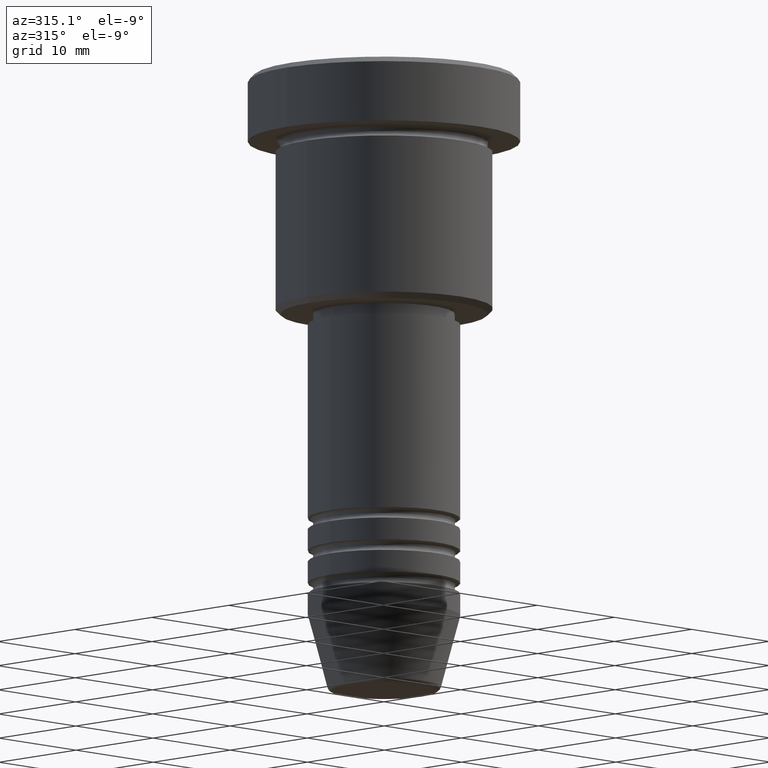
[diagram: clean part render]
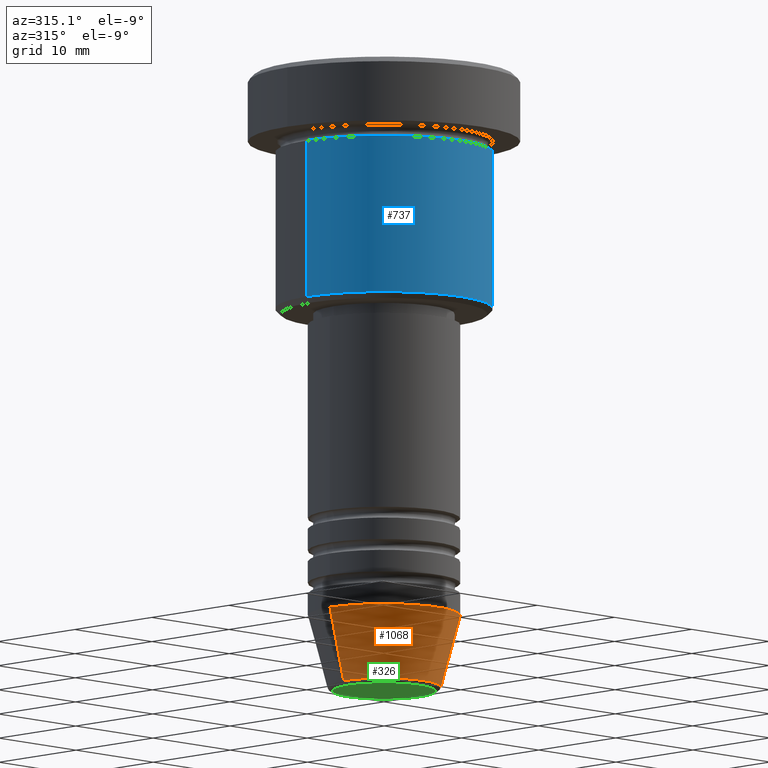
[diagram: same view with three faces highlighted in distinct colors, each labeled with its STEP entity id]
A machine part, auxiliary view with three faces highlighted in distinct colors.
Their STEP definitions:

[orange] entity #1068 — the highlighted conical surface has half-angle 15 deg.
#91 = VECTOR ( 'NONE', #220, 1000.000000000000000 ) ;
#92 = DIRECTION ( 'NONE',  ( -0.2588190451025213501, 3.169619151431772337E-17, 0.9659258262890680902 ) ) ;
#143 = CARTESIAN_POINT ( 'NONE',  ( -7.000000000000000000, 8.572527594031473190E-16, -50.00000000000000000 ) ) ;
#173 = VERTEX_POINT ( 'NONE', #1082 ) ;
#200 = EDGE_CURVE ( 'NONE', #332, #947, #207, .T. ) ;
#207 = CIRCLE ( 'NONE', #384, 7.000000000000000000 ) ;
#220 = DIRECTION ( 'NONE',  ( 0.2588190451025213501, 0.000000000000000000, 0.9659258262890680902 ) ) ;
#244 = ORIENTED_EDGE ( 'NONE', *, *, #1072, .T. ) ;
#313 = CARTESIAN_POINT ( 'NONE',  ( 7.000000000000000000, 0.000000000000000000, -50.00000000000000000 ) ) ;
#332 = VERTEX_POINT ( 'NONE', #143 ) ;
#384 = AXIS2_PLACEMENT_3D ( 'NONE', #443, #524, #887 ) ;
#396 = CARTESIAN_POINT ( 'NONE',  ( 0.000000000000000000, 0.000000000000000000, -50.00000000000000000 ) ) ;
#398 = ORIENTED_EDGE ( 'NONE', *, *, #727, .T. ) ;
#443 = CARTESIAN_POINT ( 'NONE',  ( 0.000000000000000000, 0.000000000000000000, -50.00000000000000000 ) ) ;
#463 = VERTEX_POINT ( 'NONE', #670 ) ;
#474 = AXIS2_PLACEMENT_3D ( 'NONE', #396, #1144, #1152 ) ;
#499 = LINE ( 'NONE', #313, #91 ) ;
#524 = DIRECTION ( 'NONE',  ( -0.000000000000000000, -0.000000000000000000, 1.000000000000000000 ) ) ;
#550 = CARTESIAN_POINT ( 'NONE',  ( -7.000000000000000000, 8.572527594031473190E-16, -50.00000000000000000 ) ) ;
#670 = CARTESIAN_POINT ( 'NONE',  ( 5.223655072137189492, 0.000000000000000000, -56.62940952255126348 ) ) ;
#727 = EDGE_CURVE ( 'NONE', #173, #463, #782, .T. ) ;
#782 = CIRCLE ( 'NONE', #904, 5.223655072137189492 ) ;
#849 = EDGE_LOOP ( 'NONE', ( #1052, #398, #244, #976 ) ) ;
#851 = DIRECTION ( 'NONE',  ( -0.000000000000000000, -0.000000000000000000, 1.000000000000000000 ) ) ;
#868 = FACE_OUTER_BOUND ( 'NONE', #849, .T. ) ;
#887 = DIRECTION ( 'NONE',  ( 1.000000000000000000, 0.000000000000000000, 0.000000000000000000 ) ) ;
#902 = LINE ( 'NONE', #550, #1111 ) ;
#904 = AXIS2_PLACEMENT_3D ( 'NONE', #1063, #851, #952 ) ;
#935 = CONICAL_SURFACE ( 'NONE', #474, 7.000000000000000000, 0.2617993877991500740 ) ;
#947 = VERTEX_POINT ( 'NONE', #1004 ) ;
#952 = DIRECTION ( 'NONE',  ( 1.000000000000000000, 0.000000000000000000, 0.000000000000000000 ) ) ;
#976 = ORIENTED_EDGE ( 'NONE', *, *, #200, .F. ) ;
#1004 = CARTESIAN_POINT ( 'NONE',  ( 7.000000000000000000, 0.000000000000000000, -50.00000000000000000 ) ) ;
#1040 = EDGE_CURVE ( 'NONE', #173, #332, #902, .T. ) ;
#1052 = ORIENTED_EDGE ( 'NONE', *, *, #1040, .F. ) ;
#1063 = CARTESIAN_POINT ( 'NONE',  ( 0.000000000000000000, 0.000000000000000000, -56.62940952255126348 ) ) ;
#1068 = ADVANCED_FACE ( 'NONE', ( #868 ), #935, .T. ) ;
#1072 = EDGE_CURVE ( 'NONE', #463, #947, #499, .T. ) ;
#1082 = CARTESIAN_POINT ( 'NONE',  ( -5.223655072137189492, 7.484830028987059188E-16, -56.62940952255126348 ) ) ;
#1111 = VECTOR ( 'NONE', #92, 1000.000000000000000 ) ;
#1144 = DIRECTION ( 'NONE',  ( -0.000000000000000000, -0.000000000000000000, 1.000000000000000000 ) ) ;
#1152 = DIRECTION ( 'NONE',  ( 1.000000000000000000, 0.000000000000000000, 0.000000000000000000 ) ) ;

[blue] entity #737 — the highlighted cylindrical surface (partial cylindrical patch) has radius 10 mm, axis along (-0, -0, 1).
#7 = CIRCLE ( 'NONE', #370, 10.00000000000000000 ) ;
#9 = EDGE_CURVE ( 'NONE', #632, #366, #572, .T. ) ;
#32 = VERTEX_POINT ( 'NONE', #753 ) ;
#61 = CARTESIAN_POINT ( 'NONE',  ( 0.000000000000000000, 0.000000000000000000, -21.50000000000000000 ) ) ;
#109 = LINE ( 'NONE', #476, #1105 ) ;
#127 = DIRECTION ( 'NONE',  ( 1.000000000000000000, 0.000000000000000000, 0.000000000000000000 ) ) ;
#149 = ORIENTED_EDGE ( 'NONE', *, *, #345, .F. ) ;
#160 = CIRCLE ( 'NONE', #822, 10.00000000000000000 ) ;
#176 = AXIS2_PLACEMENT_3D ( 'NONE', #943, #1119, #127 ) ;
#232 = CARTESIAN_POINT ( 'NONE',  ( 10.00000000000000000, 0.000000000000000000, -6.999999999999996447 ) ) ;
#241 = DIRECTION ( 'NONE',  ( -0.000000000000000000, -0.000000000000000000, 1.000000000000000000 ) ) ;
#256 = CARTESIAN_POINT ( 'NONE',  ( -10.00000000000000000, 1.224646799147353256E-15, -6.999999999999996447 ) ) ;
#285 = EDGE_CURVE ( 'NONE', #32, #632, #7, .T. ) ;
#304 = DIRECTION ( 'NONE',  ( -0.000000000000000000, -0.000000000000000000, 1.000000000000000000 ) ) ;
#319 = FACE_OUTER_BOUND ( 'NONE', #817, .T. ) ;
#331 = DIRECTION ( 'NONE',  ( -0.000000000000000000, -0.000000000000000000, 1.000000000000000000 ) ) ;
#339 = DIRECTION ( 'NONE',  ( 1.000000000000000000, 0.000000000000000000, 0.000000000000000000 ) ) ;
#345 = EDGE_CURVE ( 'NONE', #838, #366, #160, .T. ) ;
#347 = ORIENTED_EDGE ( 'NONE', *, *, #494, .F. ) ;
#366 = VERTEX_POINT ( 'NONE', #232 ) ;
#370 = AXIS2_PLACEMENT_3D ( 'NONE', #61, #241, #974 ) ;
#393 = ORIENTED_EDGE ( 'NONE', *, *, #9, .T. ) ;
#475 = CARTESIAN_POINT ( 'NONE',  ( 10.00000000000000000, 0.000000000000000000, -21.50000000000000000 ) ) ;
#476 = CARTESIAN_POINT ( 'NONE',  ( -10.00000000000000000, 1.224646799147353256E-15, 0.000000000000000000 ) ) ;
#494 = EDGE_CURVE ( 'NONE', #32, #838, #109, .T. ) ;
#570 = DIRECTION ( 'NONE',  ( -0.000000000000000000, -0.000000000000000000, 1.000000000000000000 ) ) ;
#572 = LINE ( 'NONE', #1041, #808 ) ;
#632 = VERTEX_POINT ( 'NONE', #475 ) ;
#737 = ADVANCED_FACE ( 'NONE', ( #319 ), #1133, .T. ) ;
#753 = CARTESIAN_POINT ( 'NONE',  ( -10.00000000000000000, 1.224646799147353256E-15, -21.50000000000000000 ) ) ;
#794 = CARTESIAN_POINT ( 'NONE',  ( 0.000000000000000000, 0.000000000000000000, -6.999999999999996447 ) ) ;
#808 = VECTOR ( 'NONE', #304, 1000.000000000000000 ) ;
#817 = EDGE_LOOP ( 'NONE', ( #347, #1159, #393, #149 ) ) ;
#822 = AXIS2_PLACEMENT_3D ( 'NONE', #794, #331, #339 ) ;
#838 = VERTEX_POINT ( 'NONE', #256 ) ;
#943 = CARTESIAN_POINT ( 'NONE',  ( 0.000000000000000000, 0.000000000000000000, 0.000000000000000000 ) ) ;
#974 = DIRECTION ( 'NONE',  ( -1.000000000000000000, 0.000000000000000000, 0.000000000000000000 ) ) ;
#1041 = CARTESIAN_POINT ( 'NONE',  ( 10.00000000000000000, 0.000000000000000000, 0.000000000000000000 ) ) ;
#1105 = VECTOR ( 'NONE', #570, 1000.000000000000000 ) ;
#1119 = DIRECTION ( 'NONE',  ( -0.000000000000000000, -0.000000000000000000, 1.000000000000000000 ) ) ;
#1133 = CYLINDRICAL_SURFACE ( 'NONE', #176, 10.00000000000000000 ) ;
#1159 = ORIENTED_EDGE ( 'NONE', *, *, #285, .T. ) ;

[green] entity #326 — the highlighted planar face has unit normal (0, -0, 1).
#37 = DIRECTION ( 'NONE',  ( 1.000000000000000000, 0.000000000000000000, 0.000000000000000000 ) ) ;
#43 = AXIS2_PLACEMENT_3D ( 'NONE', #1140, #1155, #610 ) ;
#50 = CARTESIAN_POINT ( 'NONE',  ( 4.740692158992657390, 0.000000000000000000, -57.00000000000000000 ) ) ;
#56 = EDGE_LOOP ( 'NONE', ( #461, #267 ) ) ;
#108 = EDGE_CURVE ( 'NONE', #1083, #777, #482, .T. ) ;
#152 = DIRECTION ( 'NONE',  ( 1.000000000000000000, 0.000000000000000000, 0.000000000000000000 ) ) ;
#266 = CIRCLE ( 'NONE', #1102, 4.740692158992657390 ) ;
#267 = ORIENTED_EDGE ( 'NONE', *, *, #108, .T. ) ;
#323 = CARTESIAN_POINT ( 'NONE',  ( -4.740692158992657390, 6.101402971097978774E-16, -57.00000000000000000 ) ) ;
#326 = ADVANCED_FACE ( 'NONE', ( #959 ), #771, .F. ) ;
#461 = ORIENTED_EDGE ( 'NONE', *, *, #846, .T. ) ;
#482 = CIRCLE ( 'NONE', #525, 4.740692158992657390 ) ;
#493 = CARTESIAN_POINT ( 'NONE',  ( 0.000000000000000000, 0.000000000000000000, -57.00000000000000000 ) ) ;
#525 = AXIS2_PLACEMENT_3D ( 'NONE', #493, #853, #37 ) ;
#528 = DIRECTION ( 'NONE',  ( 0.000000000000000000, 0.000000000000000000, -1.000000000000000000 ) ) ;
#610 = DIRECTION ( 'NONE',  ( 1.000000000000000000, 0.000000000000000000, 0.000000000000000000 ) ) ;
#771 = PLANE ( 'NONE',  #43 ) ;
#777 = VERTEX_POINT ( 'NONE', #50 ) ;
#846 = EDGE_CURVE ( 'NONE', #777, #1083, #266, .T. ) ;
#853 = DIRECTION ( 'NONE',  ( 0.000000000000000000, 0.000000000000000000, -1.000000000000000000 ) ) ;
#959 = FACE_OUTER_BOUND ( 'NONE', #56, .T. ) ;
#1083 = VERTEX_POINT ( 'NONE', #323 ) ;
#1102 = AXIS2_PLACEMENT_3D ( 'NONE', #1158, #528, #152 ) ;
#1140 = CARTESIAN_POINT ( 'NONE',  ( 0.000000000000000000, 0.000000000000000000, -57.00000000000000000 ) ) ;
#1155 = DIRECTION ( 'NONE',  ( 0.000000000000000000, -0.000000000000000000, 1.000000000000000000 ) ) ;
#1158 = CARTESIAN_POINT ( 'NONE',  ( 0.000000000000000000, 0.000000000000000000, -57.00000000000000000 ) ) ;